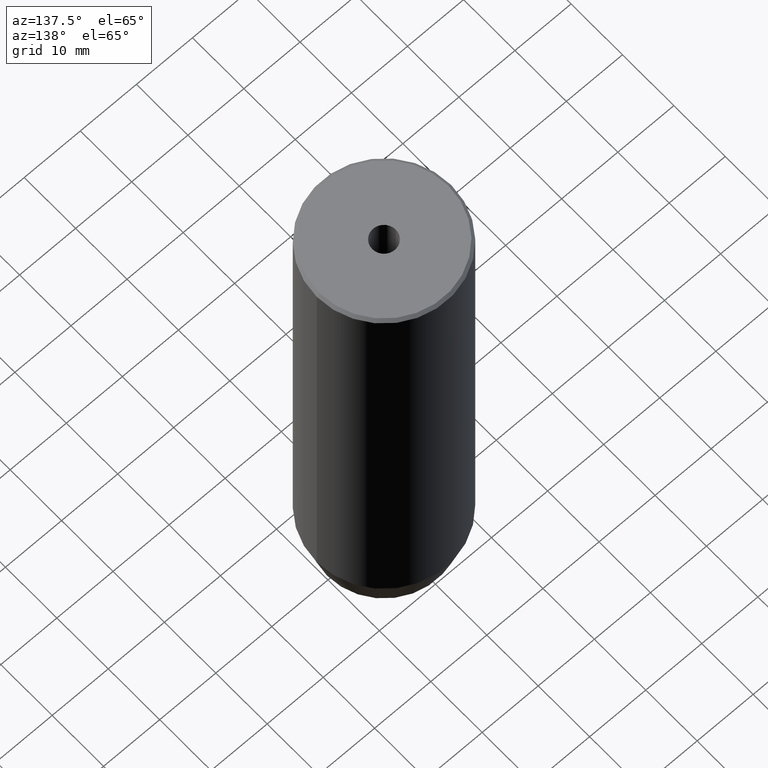
[diagram: clean part render]
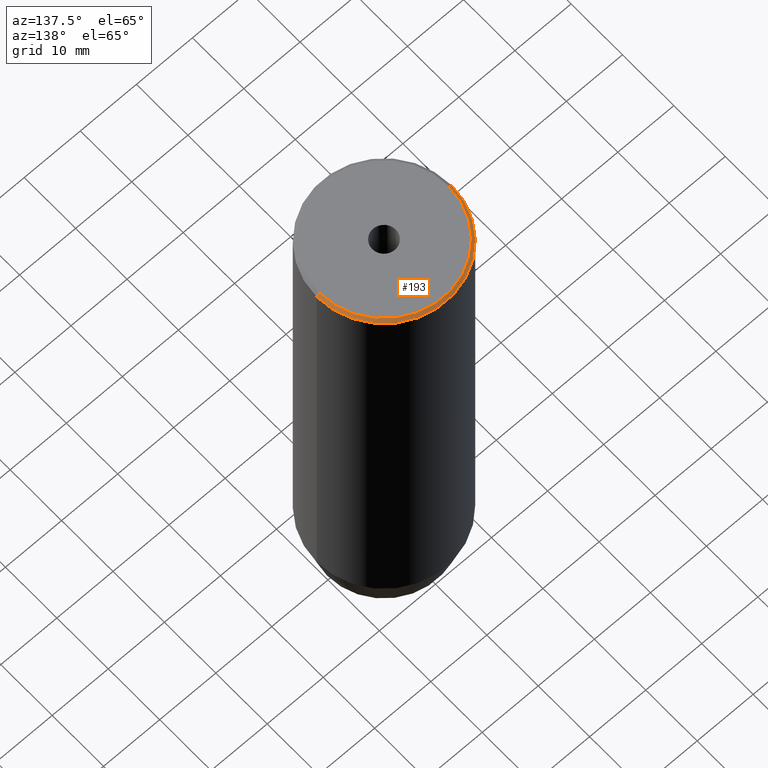
[diagram: same view with one face highlighted and labeled with its STEP entity id]
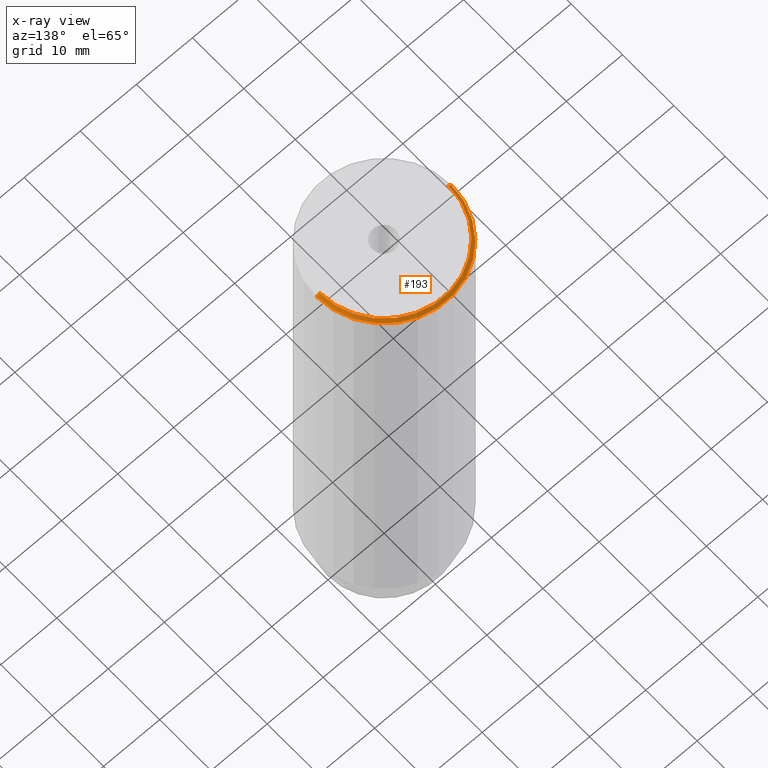
[diagram: x-ray of the same camera — body ghosted, the highlighted face saturated]
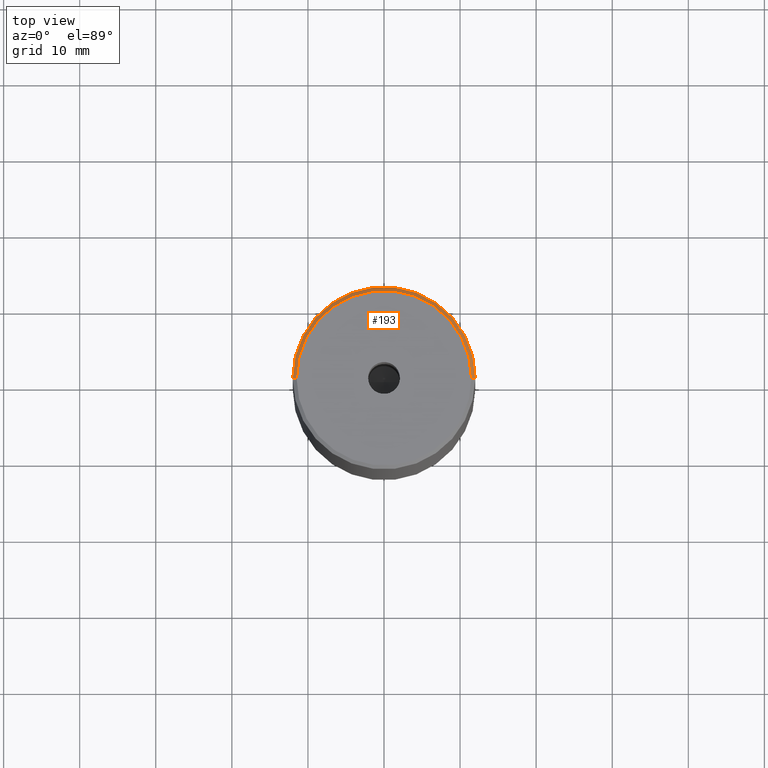
[diagram: same view with one face highlighted and labeled with its STEP entity id]
A machine part, auxiliary view. The second image highlights one B-rep face of the part: STEP entity #193.
The next image is the same camera in x-ray: the body ghosted, the highlighted face saturated — about 0% of this face is hidden behind the body in this view.
A second angle (top view) of the same face is appended — the face is thin or edge-on in the first view.
In plain terms, the highlighted conical surface has half-angle 45 deg.
Its self-contained STEP definition (entity closure, byte-faithful):
#3 = CIRCLE ( 'NONE', #467, 11.49999999999999467 ) ;
#22 = EDGE_CURVE ( 'NONE', #234, #440, #547, .T. ) ;
#40 = FACE_OUTER_BOUND ( 'NONE', #78, .T. ) ;
#59 = EDGE_CURVE ( 'NONE', #341, #234, #3, .T. ) ;
#66 = CARTESIAN_POINT ( 'NONE',  ( 0.000000000000000000, 0.000000000000000000, 0.000000000000000000 ) ) ;
#71 = AXIS2_PLACEMENT_3D ( 'NONE', #223, #359, #535 ) ;
#78 = EDGE_LOOP ( 'NONE', ( #299, #256, #286, #368 ) ) ;
#88 = DIRECTION ( 'NONE',  ( 1.000000000000000000, 0.000000000000000000, 0.000000000000000000 ) ) ;
#116 = CARTESIAN_POINT ( 'NONE',  ( 11.49999999999999467, 1.408343819019455584E-15, 0.000000000000000000 ) ) ;
#121 = CIRCLE ( 'NONE', #448, 12.00000000000000000 ) ;
#128 = CARTESIAN_POINT ( 'NONE',  ( 0.000000000000000000, 0.000000000000000000, -0.5000000000000056621 ) ) ;
#193 = ADVANCED_FACE ( 'NONE', ( #40 ), #327, .T. ) ;
#196 = DIRECTION ( 'NONE',  ( -0.7071067811865474617, 0.000000000000000000, -0.7071067811865474617 ) ) ;
#199 = VECTOR ( 'NONE', #196, 1000.000000000000114 ) ;
#223 = CARTESIAN_POINT ( 'NONE',  ( 0.000000000000000000, 0.000000000000000000, 0.000000000000000000 ) ) ;
#225 = VECTOR ( 'NONE', #386, 1000.000000000000114 ) ;
#234 = VERTEX_POINT ( 'NONE', #352 ) ;
#256 = ORIENTED_EDGE ( 'NONE', *, *, #347, .T. ) ;
#268 = EDGE_CURVE ( 'NONE', #440, #365, #121, .T. ) ;
#286 = ORIENTED_EDGE ( 'NONE', *, *, #268, .F. ) ;
#294 = LINE ( 'NONE', #116, #225 ) ;
#299 = ORIENTED_EDGE ( 'NONE', *, *, #59, .F. ) ;
#303 = DIRECTION ( 'NONE',  ( 0.000000000000000000, 0.000000000000000000, -1.000000000000000000 ) ) ;
#327 = CONICAL_SURFACE ( 'NONE', #71, 11.49999999999999467, 0.7853981633974482790 ) ;
#338 = CARTESIAN_POINT ( 'NONE',  ( 12.00000000000000000, 0.000000000000000000, -0.5000000000000056621 ) ) ;
#341 = VERTEX_POINT ( 'NONE', #345 ) ;
#345 = CARTESIAN_POINT ( 'NONE',  ( 11.49999999999999467, 1.438959988998139766E-15, 0.000000000000000000 ) ) ;
#347 = EDGE_CURVE ( 'NONE', #341, #365, #294, .T. ) ;
#352 = CARTESIAN_POINT ( 'NONE',  ( -11.49999999999999467, 0.000000000000000000, 0.000000000000000000 ) ) ;
#359 = DIRECTION ( 'NONE',  ( 0.000000000000000000, 0.000000000000000000, -1.000000000000000000 ) ) ;
#365 = VERTEX_POINT ( 'NONE', #338 ) ;
#368 = ORIENTED_EDGE ( 'NONE', *, *, #22, .F. ) ;
#386 = DIRECTION ( 'NONE',  ( 0.7071067811865474617, 8.659560562354932858E-17, -0.7071067811865474617 ) ) ;
#422 = CARTESIAN_POINT ( 'NONE',  ( -12.00000000000000000, 1.469576158976823947E-15, -0.5000000000000056621 ) ) ;
#426 = DIRECTION ( 'NONE',  ( -0.000000000000000000, -0.000000000000000000, 1.000000000000000000 ) ) ;
#440 = VERTEX_POINT ( 'NONE', #422 ) ;
#448 = AXIS2_PLACEMENT_3D ( 'NONE', #128, #303, #88 ) ;
#464 = CARTESIAN_POINT ( 'NONE',  ( -11.49999999999999467, 0.000000000000000000, 0.000000000000000000 ) ) ;
#467 = AXIS2_PLACEMENT_3D ( 'NONE', #66, #426, #474 ) ;
#474 = DIRECTION ( 'NONE',  ( 1.000000000000000000, 0.000000000000000000, 0.000000000000000000 ) ) ;
#535 = DIRECTION ( 'NONE',  ( -1.000000000000000000, 0.000000000000000000, 0.000000000000000000 ) ) ;
#547 = LINE ( 'NONE', #464, #199 ) ;